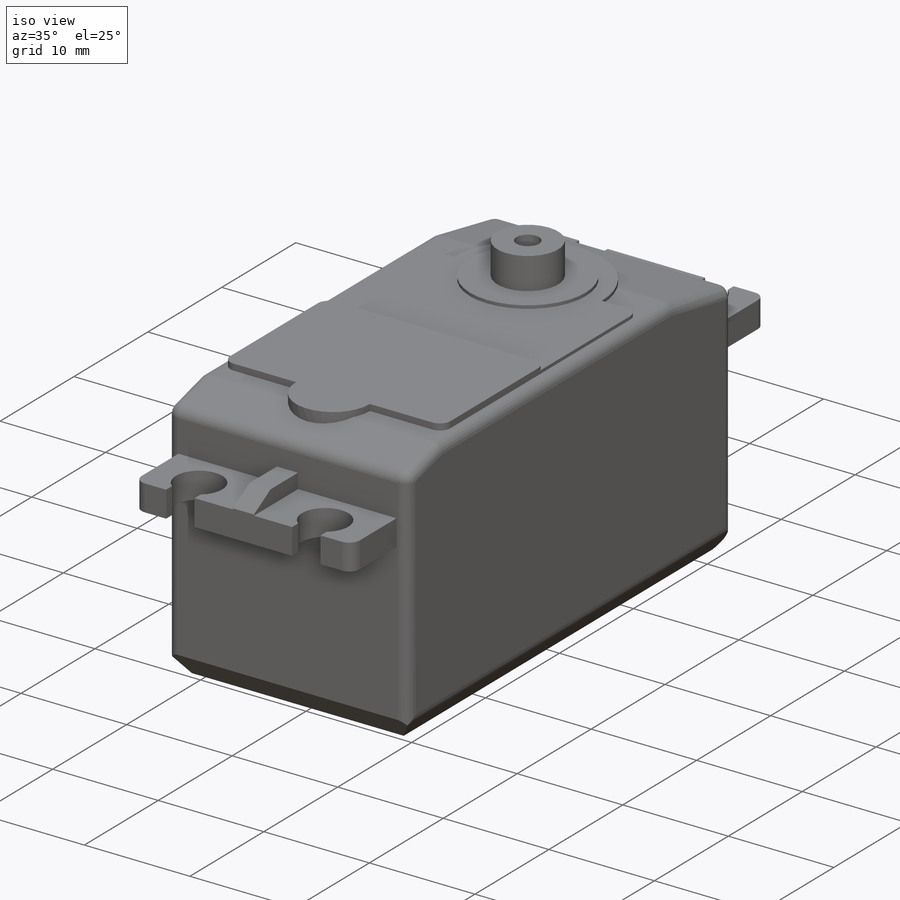
[diagram: iso view]
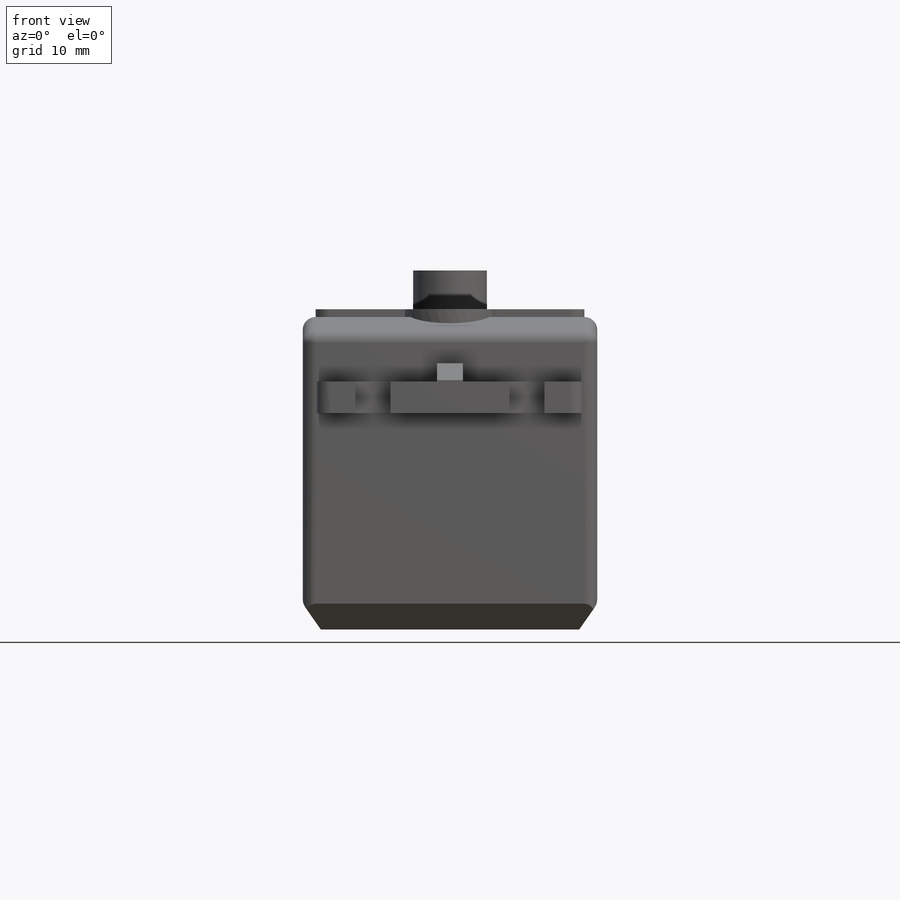
[diagram: front view]
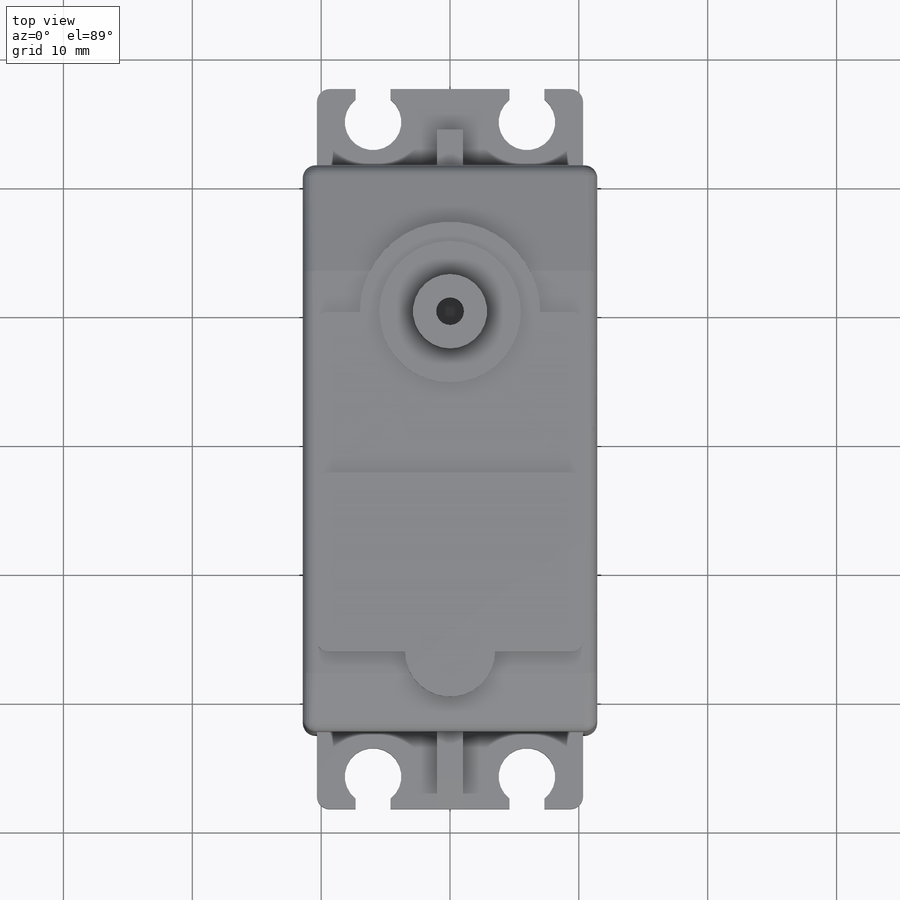
[diagram: top view]
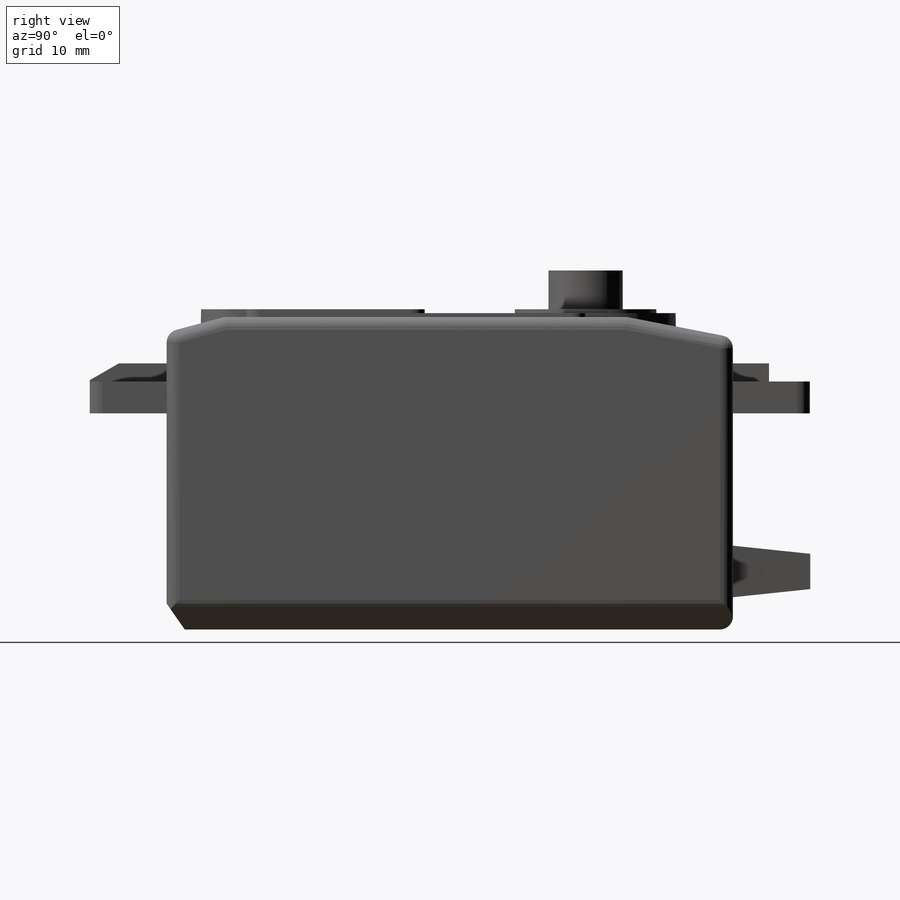
[diagram: right view]
SOLIDWORKS PART (.sldprt)
format: sldprt  version: not decoded by parser v0  size: 503,808 bytes
history: native  units: mm
features: sketch x13, cut_extrude x7, extrude x5, plane x4, chamfer x4, material x1, revolve x1, fillet x1 (+13 scaffold rows collapsed)
feature tree (49):
  scaffold x13  (default folders/planes/origin — collapsed)
  material  "ПК/АБС"
  plane  "Спереди"
  plane  "Сверху"
  plane  "Справа"
  plane  "Плоскость1"  Offset=11.43mm
  sketch  "Эскиз1"  dims[D1=55.88mm D2=24.55mm D3=17.399mm]
  extrude  "Бобышка-Вытянуть1"  Depth=22.86mm
  sketch  "Эскиз2"  dims[D1=16.764mm D2=5.969mm]
  cut_extrude  "Вырез-Вытянуть1"  Depth=23mm
  sketch  "Эскиз3"  dims[D1=5.969mm D2=2.48mm]
  cut_extrude  "Вырез-Вытянуть2"  Depth=23mm
  sketch  "Эскиз7"  dims[D1=2.0mm D2=1.4mm]
  extrude  "Бобышка-Вытянуть2"  [1 undecoded]
  extrude  "Бобышка-Вытянуть5"  [1 undecoded]
  sketch  "Эскиз7<2>"
  sketch  "Эскиз5"  dims[c1.D1=2.2mm c1.D2=2.2mm c1.D3=2.2mm c1.D4=2.2mm c2.D1=2.54mm c2.D3=11.94mm c2.D4=5.97mm c2.D5=2.7mm]
  cut_extrude  "Вырез-Вытянуть4"  Depth=3mm
  sketch  "Эскиз12"  dims[D1=7.0mm D2=4.0mm D3=2.5mm]
  extrude  "Бобышка-Вытянуть4"  Depth=6mm
  sketch  "Эскиз13"  dims[c1.D1=2.85mm c1.D2=5.5mm c1.D3=3.3mm c1.D4=0.3mm c1.D5=2.15mm c2.D1=5.76mm c2.D2=10.98mm]
  revolve  "Повернуть1"  Angle=360deg
  chamfer  "Фаска1"  Distance=1.3mm Angle=60deg
  sketch  "Эскиз18"  dims[D1=7.0mm D2=3.5mm D5=1.0mm D3=20.85mm D4=26.36mm]
  cut_extrude  "Вырез-Вытянуть9"  Depth=0.3mm
  sketch  "Эскиз19"  dims[D1=1.0mm D2=13.88mm]
  extrude  "Бобышка-Вытянуть6"  Depth=0.3mm
  sketch  "Эскиз20"
  cut_extrude  "Вырез-Вытянуть10"  Depth=1.1mm
  sketch  "Эскиз21"
  cut_extrude  "Вырез-Вытянуть11"  Depth=1.1mm
  chamfer  "Фаска3"  Distance=1.6mm Angle=79deg
  chamfer  "Фаска4"  Distance=1.2mm Angle=75deg
  chamfer  "Фаска5"  Distance=2mm Angle=35deg
  fillet  "Скругление1"  Radius=1mm
  sketch  "Эскиз23"  dims[D1=2.8mm]
  cut_extrude  "доработка"  [1 undecoded]
decode coverage: 25 of 31 modeling features carry decoded parameters
note: 3 parameter values undecoded
summary: no parameter record found for 3 features
note: suppression state not decoded; provenance and decode notes live in map.json
